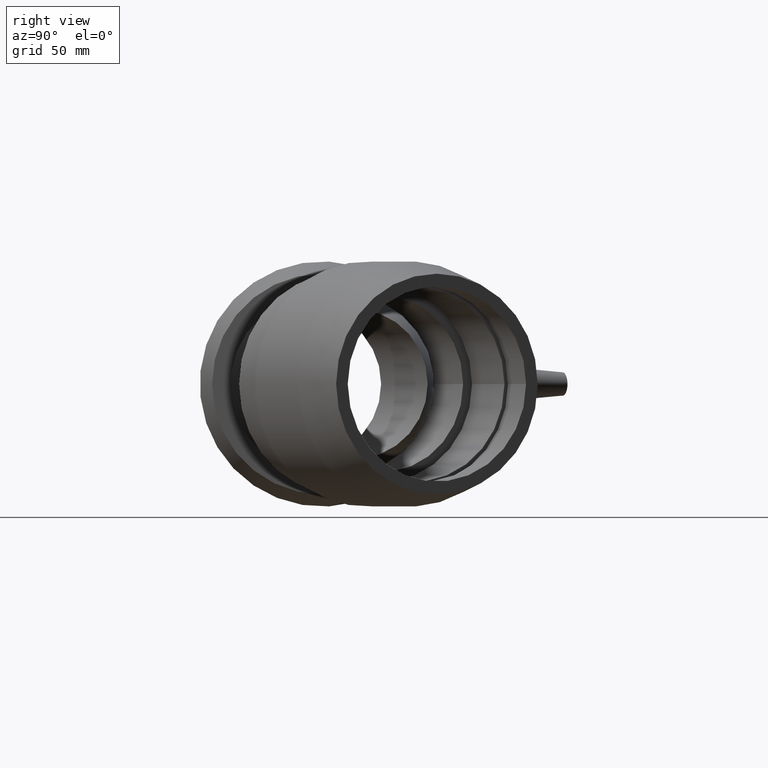
[diagram: clean part render]
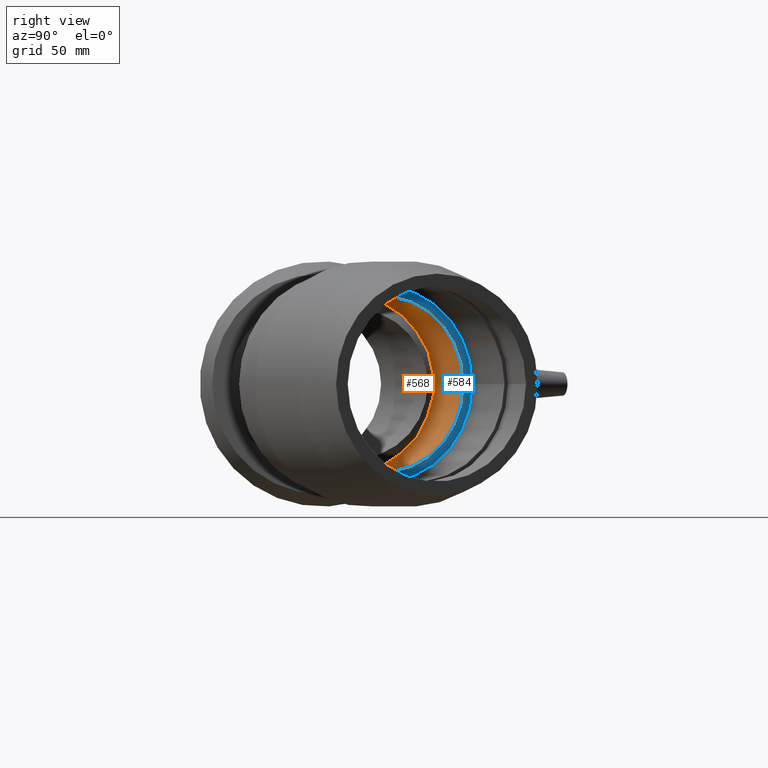
[diagram: same view with the hole feature highlighted: cylindrical wall and planar end face, labeled with their STEP entity ids]
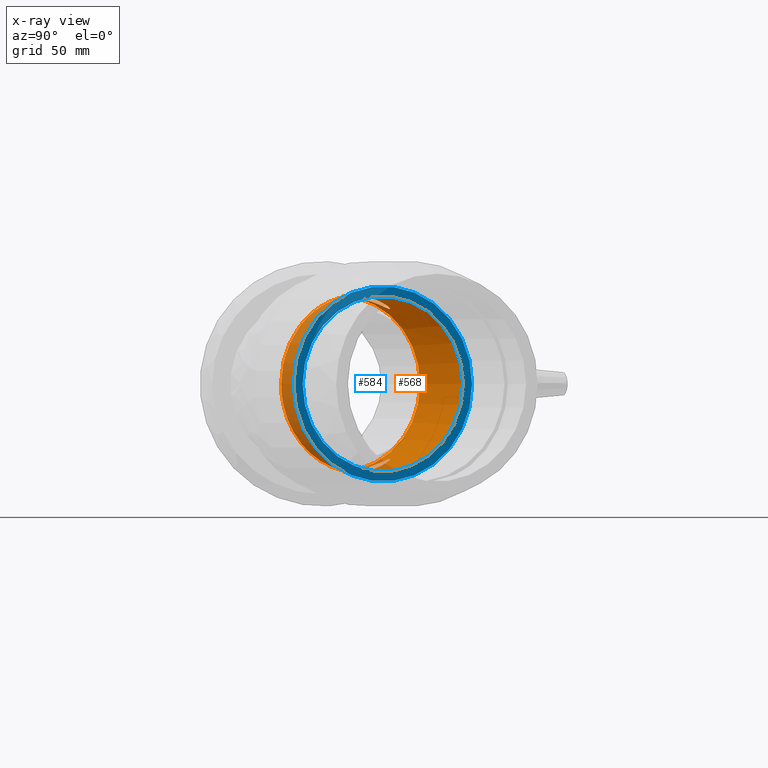
[diagram: x-ray of the same camera — body ghosted, the hole faces saturated]
A machine part, right view. The highlighted faces form one hole feature of diameter 112.5 mm: the cylindrical wall (entity #568, orange) and its adjacent planar end face (entity #584, blue) — they share a circular edge in the B-rep.
The next image is the same camera in x-ray (body ghosted, the hole faces saturated) — the bore reads through the body.
Wall:
#55=CYLINDRICAL_SURFACE('',#647,56.25);
#90=FACE_BOUND('',#218,.T.);
#140=FACE_OUTER_BOUND('',#217,.T.);
#217=EDGE_LOOP('',(#490,#491,#492));
#218=EDGE_LOOP('',(#493));
#263=B_SPLINE_CURVE_WITH_KNOTS('',3,(#894,#895,#896,#897,#898,#899,#900,
#901,#902,#903,#904,#905,#906,#907,#908,#909,#910,#911,#912,#913,#914,#915,
#916,#917,#918,#919,#920,#921,#922,#923,#924,#925,#926,#927,#928,#929,#930,
#931,#932,#933,#934,#935,#936,#937,#938,#939,#940,#941,#942,#943,#944,#945,
#946,#947,#948,#949),.UNSPECIFIED.,.F.,.F.,(4,2,2,2,2,2,2,2,2,2,2,2,2,2,
2,2,2,2,2,2,2,2,2,2,2,2,2,4),(-26.7086728411766,-25.8718559541671,-25.1468552282631,
-24.4218545023592,-24.1658876884754,-23.9099208745916,-23.6616190061625,
-23.537468071948,-23.4133171377335,-23.289166203519,-23.1650152693044,-22.9167134008754,
-22.6607465869916,-22.4047797731078,-21.6797790472038,-20.9547783212999,
-20.0586857771525,-19.1625932330052,-18.2665006888579,-17.3704081447105,
-16.6599495451314,-15.9494909455522,-15.239032345973,-14.5285737463939,
-13.8230949520121,-13.1176161576303,-12.4121373632485,-11.7066585688667),
 .UNSPECIFIED.);
#264=B_SPLINE_CURVE_WITH_KNOTS('',3,(#952,#953,#954,#955,#956,#957,#958,
#959,#960,#961,#962,#963,#964,#965,#966,#967,#968,#969,#970,#971,#972,#973,
#974,#975,#976,#977,#978,#979,#980,#981,#982,#983,#984,#985,#986,#987,#988,
#989,#990,#991,#992,#993,#994,#995,#996,#997,#998,#999,#1000,#1001,#1002,
#1003,#1004,#1005,#1006,#1007,#1008),.UNSPECIFIED.,.F.,.F.,(4,2,2,2,2,2,
2,2,2,2,2,2,2,2,2,2,2,2,2,3,2,2,2,2,2,2,2,4),(-11.7066585688667,-11.001179774485,
-10.2957009801032,-9.59022218572139,-8.8847433913396,-8.17428479176044,
-7.46382619218127,-6.7533675926021,-6.04290899302294,-5.14681644887561,
-4.25072390472828,-3.35463136058094,-2.45853881643361,-1.73353809052965,
-1.0085373646257,-0.7525705507419,-0.496603736858106,-0.248301868429053,
-0.124150934214526,-7.105427357601E-15,0.124150934214522,0.248301868429045,
0.496603736858089,0.752570550741886,1.00853736462568,1.73353809052964,2.45853881643359,
3.29535570344315),.UNSPECIFIED.);
#298=CIRCLE('',#648,56.25);
#299=CIRCLE('',#649,56.25);
#319=VERTEX_POINT('',#891);
#320=VERTEX_POINT('',#893);
#321=VERTEX_POINT('',#950);
#349=VERTEX_POINT('',#1270);
#372=EDGE_CURVE('',#320,#319,#263,.T.);
#374=EDGE_CURVE('',#319,#321,#264,.T.);
#404=EDGE_CURVE('',#320,#321,#298,.T.);
#405=EDGE_CURVE('',#349,#349,#299,.T.);
#490=ORIENTED_EDGE('',*,*,#372,.T.);
#491=ORIENTED_EDGE('',*,*,#374,.T.);
#492=ORIENTED_EDGE('',*,*,#404,.F.);
#493=ORIENTED_EDGE('',*,*,#405,.T.);
#568=ADVANCED_FACE('',(#140,#90),#55,.F.);
#647=AXIS2_PLACEMENT_3D('',#1268,#801,#802);
#648=AXIS2_PLACEMENT_3D('',#1269,#803,#804);
#649=AXIS2_PLACEMENT_3D('',#1271,#805,#806);
#801=DIRECTION('center_axis',(0.913545457642601,0.4067366430758,1.19788532833232E-16));
#802=DIRECTION('ref_axis',(-0.4067366430758,0.913545457642601,-2.54618386665283E-17));
#803=DIRECTION('center_axis',(0.913545457642601,0.4067366430758,1.19788532833232E-16));
#804=DIRECTION('ref_axis',(1.19788532833232E-16,2.54618386665284E-17,-1.));
#805=DIRECTION('center_axis',(0.913545457642601,0.4067366430758,1.19788532833232E-16));
#806=DIRECTION('ref_axis',(1.19788532833232E-16,2.54618386665284E-17,-1.));
#891=CARTESIAN_POINT('',(182.774820906317,-26.433666379275,0.));
#893=CARTESIAN_POINT('',(128.989966791681,11.0227797653048,-56.2497848905174));
#894=CARTESIAN_POINT('Ctrl Pts',(128.989966791681,11.0227797653048,-56.2497848905174));
#895=CARTESIAN_POINT('Ctrl Pts',(128.378683839832,13.8986399459824,-56.2577382850324));
#896=CARTESIAN_POINT('Ctrl Pts',(127.820466434286,16.73551975678,-56.0420433646706));
#897=CARTESIAN_POINT('Ctrl Pts',(126.934381329576,21.8122481497137,-55.3039855752283));
#898=CARTESIAN_POINT('Ctrl Pts',(126.533154076729,24.3821549930823,-54.7744138530293));
#899=CARTESIAN_POINT('Ctrl Pts',(125.931553243493,29.4500177346707,-53.3785784996416));
#900=CARTESIAN_POINT('Ctrl Pts',(125.731078815391,31.9480293617349,-52.5125606815616));
#901=CARTESIAN_POINT('Ctrl Pts',(125.708702976658,34.9873862862094,-51.3067409659448));
#902=CARTESIAN_POINT('Ctrl Pts',(125.725307088208,35.8539408405913,-50.9473713473488));
#903=CARTESIAN_POINT('Ctrl Pts',(125.844450965735,37.5700255015151,-50.207941722795));
#904=CARTESIAN_POINT('Ctrl Pts',(125.947939532178,38.4196323887351,-49.8282131343125));
#905=CARTESIAN_POINT('Ctrl Pts',(126.25787366008,39.9270160139537,-49.152087785874));
#906=CARTESIAN_POINT('Ctrl Pts',(126.485385551287,40.7248637483219,-48.7907479864418));
#907=CARTESIAN_POINT('Ctrl Pts',(127.028731040772,41.7750484683068,-48.3570187126215));
#908=CARTESIAN_POINT('Ctrl Pts',(127.242941996463,42.099854943724,-48.231329577514));
#909=CARTESIAN_POINT('Ctrl Pts',(127.764041736446,42.6627754960162,-48.0486132129115));
#910=CARTESIAN_POINT('Ctrl Pts',(128.069855798313,42.9016984924731,-47.9910159931431));
#911=CARTESIAN_POINT('Ctrl Pts',(128.825972611738,43.2383433872541,-47.9910159931431));
#912=CARTESIAN_POINT('Ctrl Pts',(129.208156548894,43.3057368353972,-48.0486132129115));
#913=CARTESIAN_POINT('Ctrl Pts',(129.975171829472,43.3163220402357,-48.2313295775138));
#914=CARTESIAN_POINT('Ctrl Pts',(130.359885187631,43.2581738496731,-48.3570187126215));
#915=CARTESIAN_POINT('Ctrl Pts',(131.503893624924,42.9592475001575,-48.7907479864418));
#916=CARTESIAN_POINT('Ctrl Pts',(132.249045209956,42.5944574465626,-49.152087785874));
#917=CARTESIAN_POINT('Ctrl Pts',(133.576635961981,41.8161468707945,-49.8282131343125));
#918=CARTESIAN_POINT('Ctrl Pts',(134.277264291124,41.3245558918303,-50.207941722795));
#919=CARTESIAN_POINT('Ctrl Pts',(135.632286541984,40.264812278175,-50.9473713473488));
#920=CARTESIAN_POINT('Ctrl Pts',(136.287372394296,39.697313363338,-51.3067409659448));
#921=CARTESIAN_POINT('Ctrl Pts',(138.531082406959,37.6469581327533,-52.5125606815616));
#922=CARTESIAN_POINT('Ctrl Pts',(140.253323245959,35.8264805641595,-53.3785784996416));
#923=CARTESIAN_POINT('Ctrl Pts',(143.61692968827,31.9883419487148,-54.7744138530292));
#924=CARTESIAN_POINT('Ctrl Pts',(145.258269225894,29.9705686675324,-55.3039855752283));
#925=CARTESIAN_POINT('Ctrl Pts',(148.558791367331,25.7611669958394,-56.0700548687753));
#926=CARTESIAN_POINT('Ctrl Pts',(150.418695891083,23.2736028859968,-56.2868999662777));
#927=CARTESIAN_POINT('Ctrl Pts',(154.11746506546,18.1603706756136,-56.2026267313665));
#928=CARTESIAN_POINT('Ctrl Pts',(155.956402541787,15.5347538941785,-55.9015910188864));
#929=CARTESIAN_POINT('Ctrl Pts',(159.523116961597,10.3286193709817,-54.7681110432134));
#930=CARTESIAN_POINT('Ctrl Pts',(161.25303152164,7.74510865213998,-53.9350156794335));
#931=CARTESIAN_POINT('Ctrl Pts',(164.523217751204,2.78709778435769,-51.8069176069772));
#932=CARTESIAN_POINT('Ctrl Pts',(166.06352945182,0.41266155431967,-50.5118274971844));
#933=CARTESIAN_POINT('Ctrl Pts',(168.594274139517,-3.52866038246922,-47.9158375942035));
#934=CARTESIAN_POINT('Ctrl Pts',(169.715176554303,-5.29012542542319,-46.5867521235576));
#935=CARTESIAN_POINT('Ctrl Pts',(171.878229702277,-8.71473784285645,-43.5976049376402));
#936=CARTESIAN_POINT('Ctrl Pts',(172.920440357152,-10.3778189052855,-41.9375106120598));
#937=CARTESIAN_POINT('Ctrl Pts',(174.864773336937,-13.49824035886,-38.3646164415456));
#938=CARTESIAN_POINT('Ctrl Pts',(175.767699992677,-14.9567563504631,-36.4504206567245));
#939=CARTESIAN_POINT('Ctrl Pts',(177.39532251377,-17.5968506887107,-32.4862048689867));
#940=CARTESIAN_POINT('Ctrl Pts',(178.120058339922,-18.7784220142805,-30.4361965973296));
#941=CARTESIAN_POINT('Ctrl Pts',(179.371155706284,-20.8238816523802,-26.3708208103975));
#942=CARTESIAN_POINT('Ctrl Pts',(179.952260611309,-21.7773673234184,-24.1816341189497));
#943=CARTESIAN_POINT('Ctrl Pts',(180.969499566235,-23.4502872491326,-19.5826886731767));
#944=CARTESIAN_POINT('Ctrl Pts',(181.405650843797,-24.1696774798109,-17.1729177153192));
#945=CARTESIAN_POINT('Ctrl Pts',(182.100612395119,-25.3174377346909,-12.2624013515085));
#946=CARTESIAN_POINT('Ctrl Pts',(182.359708372354,-25.7462427517242,-9.7597414046924));
#947=CARTESIAN_POINT('Ctrl Pts',(182.696806277496,-26.3043466851708,-4.80433711751417));
#948=CARTESIAN_POINT('Ctrl Pts',(182.774820906317,-26.433666379275,-2.3515959812727));
#949=CARTESIAN_POINT('Ctrl Pts',(182.774820906317,-26.433666379275,-8.71525074330748E-14));
#950=CARTESIAN_POINT('',(128.989966791681,11.0227797653046,56.2497848905174));
#952=CARTESIAN_POINT('Ctrl Pts',(182.774820906317,-26.433666379275,-8.65973959207622E-14));
#953=CARTESIAN_POINT('Ctrl Pts',(182.774820906317,-26.433666379275,2.35159598127255));
#954=CARTESIAN_POINT('Ctrl Pts',(182.696806277496,-26.3043466851708,4.80433711751405));
#955=CARTESIAN_POINT('Ctrl Pts',(182.359708372354,-25.7462427517242,9.7597414046923));
#956=CARTESIAN_POINT('Ctrl Pts',(182.100612395119,-25.3174377346909,12.2624013515084));
#957=CARTESIAN_POINT('Ctrl Pts',(181.405650843797,-24.169677479811,17.172917715319));
#958=CARTESIAN_POINT('Ctrl Pts',(180.969499566235,-23.4502872491327,19.5826886731765));
#959=CARTESIAN_POINT('Ctrl Pts',(179.952260611309,-21.7773673234185,24.1816341189495));
#960=CARTESIAN_POINT('Ctrl Pts',(179.371155706284,-20.8238816523802,26.3708208103974));
#961=CARTESIAN_POINT('Ctrl Pts',(178.120058339922,-18.7784220142806,30.4361965973295));
#962=CARTESIAN_POINT('Ctrl Pts',(177.39532251377,-17.5968506887108,32.4862048689866));
#963=CARTESIAN_POINT('Ctrl Pts',(175.767699992678,-14.9567563504632,36.4504206567244));
#964=CARTESIAN_POINT('Ctrl Pts',(174.864773336937,-13.4982403588601,38.3646164415455));
#965=CARTESIAN_POINT('Ctrl Pts',(172.920440357152,-10.3778189052856,41.9375106120597));
#966=CARTESIAN_POINT('Ctrl Pts',(171.878229702277,-8.71473784285659,43.5976049376401));
#967=CARTESIAN_POINT('Ctrl Pts',(169.715176554303,-5.29012542542333,46.5867521235575));
#968=CARTESIAN_POINT('Ctrl Pts',(168.594274139517,-3.52866038246938,47.9158375942034));
#969=CARTESIAN_POINT('Ctrl Pts',(166.06352945182,0.412661554319481,50.5118274971843));
#970=CARTESIAN_POINT('Ctrl Pts',(164.523217751204,2.78709778435746,51.8069176069771));
#971=CARTESIAN_POINT('Ctrl Pts',(161.25303152164,7.74510865213973,53.9350156794335));
#972=CARTESIAN_POINT('Ctrl Pts',(159.523116961597,10.3286193709815,54.7681110432133));
#973=CARTESIAN_POINT('Ctrl Pts',(155.956402541787,15.5347538941783,55.9015910188864));
#974=CARTESIAN_POINT('Ctrl Pts',(154.11746506546,18.1603706756135,56.2026267313665));
#975=CARTESIAN_POINT('Ctrl Pts',(150.418695891083,23.2736028859966,56.2868999662777));
#976=CARTESIAN_POINT('Ctrl Pts',(148.558791367331,25.7611669958393,56.0700548687753));
#977=CARTESIAN_POINT('Ctrl Pts',(145.258269225894,29.9705686675322,55.3039855752283));
#978=CARTESIAN_POINT('Ctrl Pts',(143.616929688271,31.9883419487147,54.7744138530293));
#979=CARTESIAN_POINT('Ctrl Pts',(140.253323245959,35.8264805641593,53.3785784996416));
#980=CARTESIAN_POINT('Ctrl Pts',(138.531082406959,37.6469581327531,52.5125606815617));
#981=CARTESIAN_POINT('Ctrl Pts',(136.287372394296,39.6973133633378,51.3067409659449));
#982=CARTESIAN_POINT('Ctrl Pts',(135.632286541984,40.2648122781748,50.9473713473489));
#983=CARTESIAN_POINT('Ctrl Pts',(134.277264291124,41.3245558918301,50.2079417227951));
#984=CARTESIAN_POINT('Ctrl Pts',(133.576635961981,41.8161468707943,49.8282131343126));
#985=CARTESIAN_POINT('Ctrl Pts',(132.249045209956,42.5944574465624,49.1520877858741));
#986=CARTESIAN_POINT('Ctrl Pts',(131.503893624924,42.9592475001574,48.7907479864419));
#987=CARTESIAN_POINT('Ctrl Pts',(130.359885187631,43.2581738496729,48.3570187126216));
#988=CARTESIAN_POINT('Ctrl Pts',(129.975171829472,43.3163220402356,48.2313295775139));
#989=CARTESIAN_POINT('Ctrl Pts',(129.208156548894,43.305736835397,48.0486132129115));
#990=CARTESIAN_POINT('Ctrl Pts',(128.825972611738,43.2383433872539,47.9910159931432));
#991=CARTESIAN_POINT('Ctrl Pts',(128.447914205026,43.0700209398634,47.9910159931432));
#992=CARTESIAN_POINT('Ctrl Pts',(128.069855798313,42.901698492473,47.9910159931432));
#993=CARTESIAN_POINT('Ctrl Pts',(127.764041736446,42.662775496016,48.0486132129117));
#994=CARTESIAN_POINT('Ctrl Pts',(127.242941996463,42.0998549437238,48.2313295775141));
#995=CARTESIAN_POINT('Ctrl Pts',(127.028731040772,41.7750484683067,48.3570187126217));
#996=CARTESIAN_POINT('Ctrl Pts',(126.485385551288,40.7248637483218,48.790747986442));
#997=CARTESIAN_POINT('Ctrl Pts',(126.257873660081,39.9270160139536,49.1520877858741));
#998=CARTESIAN_POINT('Ctrl Pts',(125.947939532178,38.4196323887351,49.8282131343126));
#999=CARTESIAN_POINT('Ctrl Pts',(125.844450965735,37.570025501515,50.207941722795));
#1000=CARTESIAN_POINT('Ctrl Pts',(125.725307088207,35.8539408405912,50.9473713473488));
#1001=CARTESIAN_POINT('Ctrl Pts',(125.708702976658,34.9873862862092,51.3067409659449));
#1002=CARTESIAN_POINT('Ctrl Pts',(125.731078815391,31.9480293617347,52.5125606815617));
#1003=CARTESIAN_POINT('Ctrl Pts',(125.931553243493,29.4500177346705,53.3785784996416));
#1004=CARTESIAN_POINT('Ctrl Pts',(126.533154076729,24.3821549930821,54.7744138530293));
#1005=CARTESIAN_POINT('Ctrl Pts',(126.934381329576,21.8122481497135,55.3039855752283));
#1006=CARTESIAN_POINT('Ctrl Pts',(127.820466434286,16.7355197567798,56.0420433646706));
#1007=CARTESIAN_POINT('Ctrl Pts',(128.378683839832,13.8986399459822,56.2577382850324));
#1008=CARTESIAN_POINT('Ctrl Pts',(128.989966791681,11.0227797653046,56.2497848905174));
#1268=CARTESIAN_POINT('Origin',(159.895884733303,24.9532656131212,7.34901840805295E-15));
#1269=CARTESIAN_POINT('Origin',(128.926693719219,11.1648934128516,3.28818714500639E-15));
#1270=CARTESIAN_POINT('',(167.986139574374,90.1285698057872,9.9776212461073E-15));
#1271=CARTESIAN_POINT('Origin',(190.865075747387,38.7416378133908,1.14098496710995E-14));
End face:
#42=PLANE('',#678);
#105=FACE_BOUND('',#249,.T.);
#156=FACE_OUTER_BOUND('',#248,.T.);
#248=EDGE_LOOP('',(#524));
#249=EDGE_LOOP('',(#525));
#299=CIRCLE('',#649,56.25);
#313=CIRCLE('',#679,62.5);
#349=VERTEX_POINT('',#1270);
#365=VERTEX_POINT('',#1384);
#405=EDGE_CURVE('',#349,#349,#299,.T.);
#421=EDGE_CURVE('',#365,#365,#313,.T.);
#524=ORIENTED_EDGE('',*,*,#421,.T.);
#525=ORIENTED_EDGE('',*,*,#405,.F.);
#584=ADVANCED_FACE('',(#156,#105),#42,.F.);
#649=AXIS2_PLACEMENT_3D('',#1271,#805,#806);
#678=AXIS2_PLACEMENT_3D('',#1383,#863,#864);
#679=AXIS2_PLACEMENT_3D('',#1385,#865,#866);
#805=DIRECTION('center_axis',(0.913545457642601,0.4067366430758,1.19788532833232E-16));
#806=DIRECTION('ref_axis',(1.19788532833232E-16,2.54618386665284E-17,-1.));
#863=DIRECTION('center_axis',(-0.913545457642601,-0.4067366430758,-1.19788532833232E-16));
#864=DIRECTION('ref_axis',(0.,0.,1.));
#865=DIRECTION('center_axis',(0.913545457642601,0.4067366430758,1.19788532833232E-16));
#866=DIRECTION('ref_axis',(1.19788532833232E-16,2.54618386665284E-17,-1.));
#1270=CARTESIAN_POINT('',(167.986139574374,90.1285698057872,9.9776212461073E-15));
#1271=CARTESIAN_POINT('Origin',(190.865075747387,38.7416378133908,1.14098496710995E-14));
#1383=CARTESIAN_POINT('Origin',(165.44403555515,95.8382289160534,9.8184847544415E-15));
#1384=CARTESIAN_POINT('',(165.44403555515,95.8382289160534,9.8184847544415E-15));
#1385=CARTESIAN_POINT('Origin',(190.865075747387,38.7416378133908,1.14098496710995E-14));